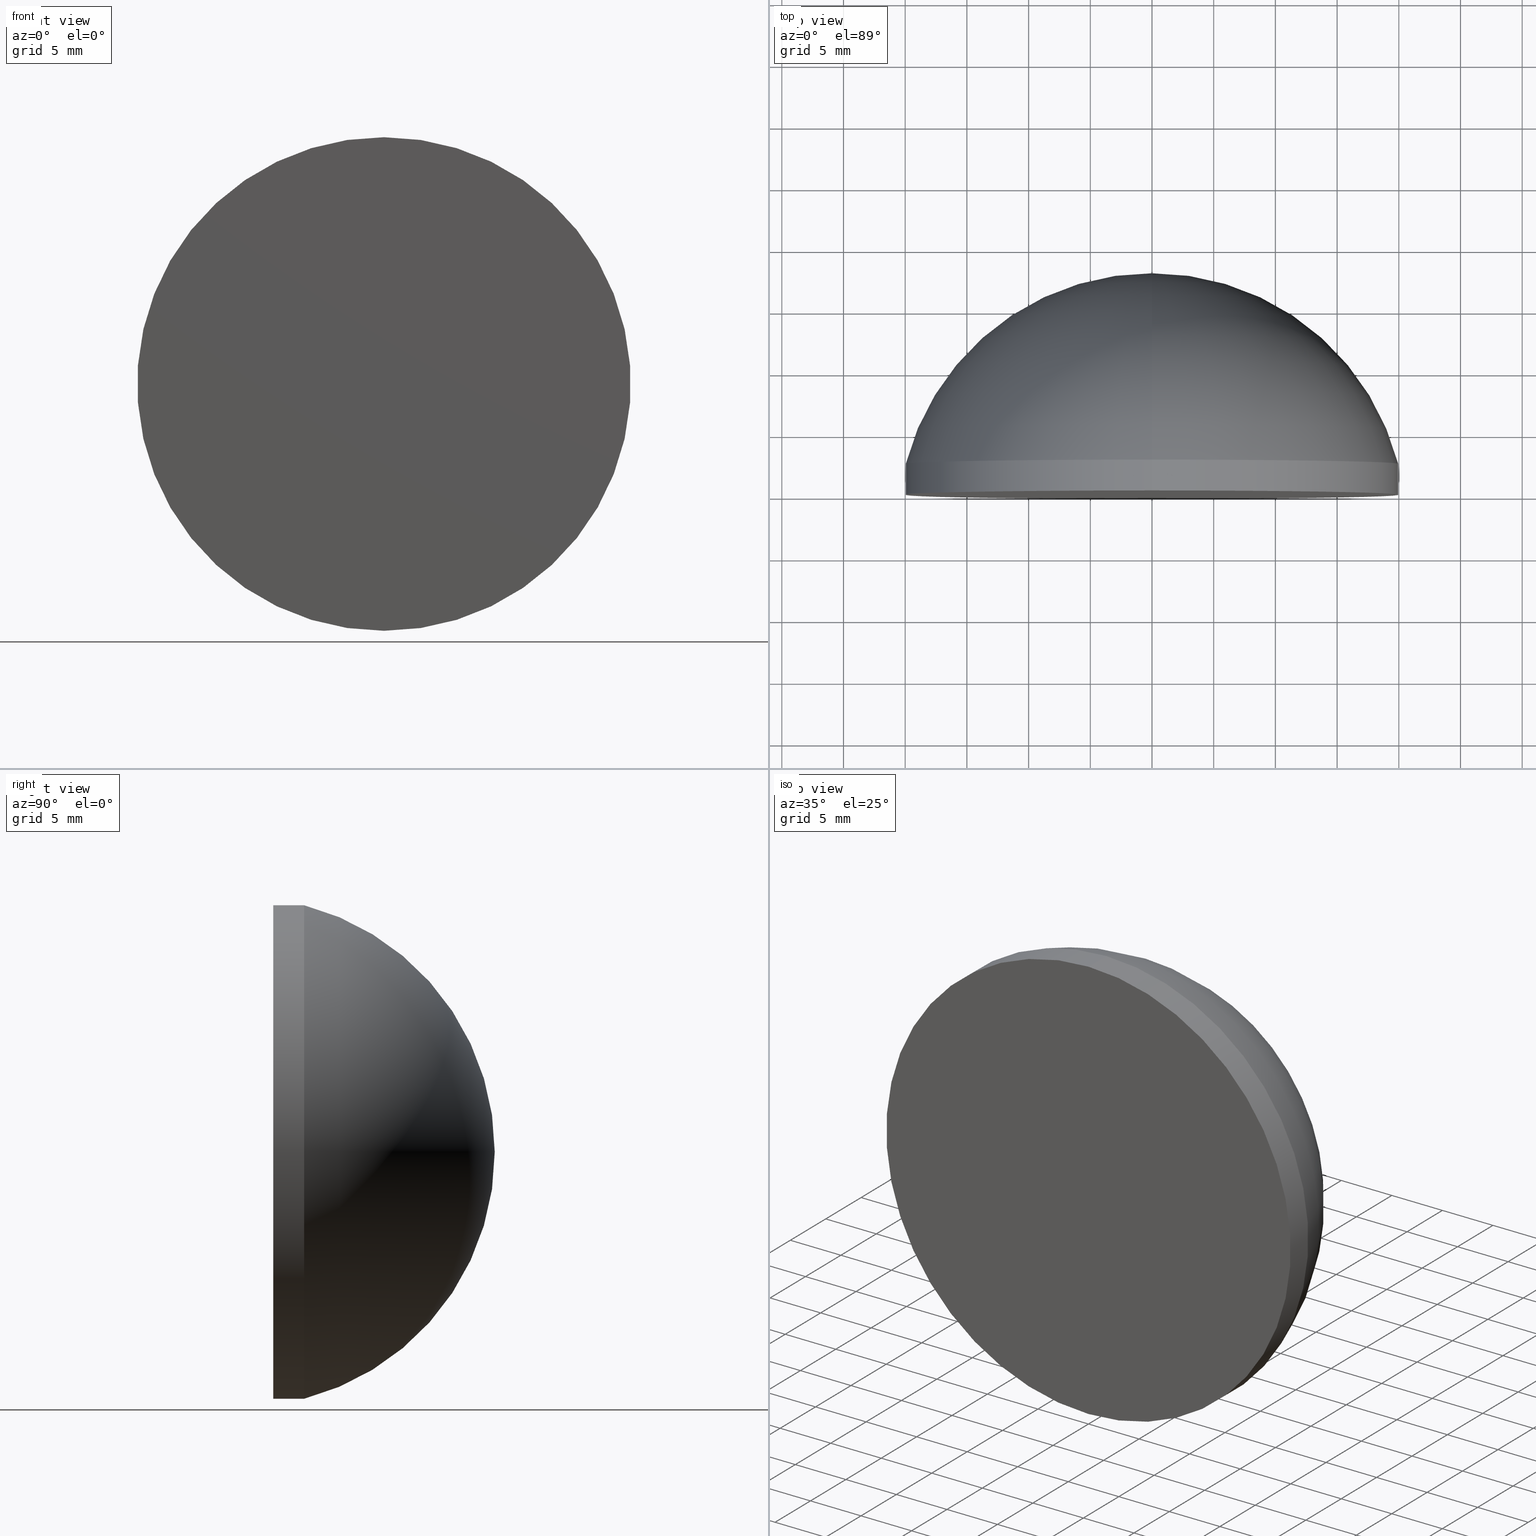
[diagram: canonical four-view strip — front | top / right | iso, engineering-drawing reading convention]
A machine part, canonical four-view strip (front | top / right | iso — engineering-drawing reading convention). The complete STEP part file that produces these views, byte-faithful:
ISO-10303-21;
HEADER;
FILE_DESCRIPTION (( 'STEP AP203' ),
    '1' );
FILE_NAME ('100558.STEP',
    '2024-05-09T01:59:52',
    ( '' ),
    ( '' ),
    'SwSTEP 2.0',
    'SolidWorks 2020',
    '' );
FILE_SCHEMA (( 'CONFIG_CONTROL_DESIGN' ));
ENDSEC;

DATA;
#1 = CALENDAR_DATE ( 2024, 9, 5 ) ;
#2 = PRODUCT_DEFINITION_FORMATION_WITH_SPECIFIED_SOURCE ( '�κ�', '', #63, .NOT_KNOWN. ) ;
#3 = LINE ( 'NONE', #188, #143 ) ;
#4 = CIRCLE ( 'NONE', #167, 20.00000000000000000 ) ;
#5 = ORIENTED_EDGE ( 'NONE', *, *, #109, .F. ) ;
#6 = DIRECTION ( 'NONE',  ( -1.000000000000000000, 0.000000000000000000, 0.000000000000000000 ) ) ;
#7 = EDGE_CURVE ( 'NONE', #145, #161, #54, .T. ) ;
#8 = ORIENTED_EDGE ( 'NONE', *, *, #172, .T. ) ;
#9 = PERSON ( 'δָ��', 'δָ��', 'δָ��', ('δָ��'), ('δָ��'), ('δָ��') ) ;
#10 = VERTEX_POINT ( 'NONE', #40 ) ;
#11 = CIRCLE ( 'NONE', #15, 20.67000000000000881 ) ;
#12 = CC_DESIGN_PERSON_AND_ORGANIZATION_ASSIGNMENT ( #75, #170, ( #106 ) ) ;
#13 = APPLICATION_CONTEXT ( 'configuration controlled 3d designs of mechanical parts and assemblies' ) ;
#14 = CARTESIAN_POINT ( 'NONE',  ( 2.449293598294706513E-15, 2.499999999999996891, -20.00000000000000000 ) ) ;
#15 = AXIS2_PLACEMENT_3D ( 'NONE', #112, #182, #136 ) ;
#16 = CARTESIAN_POINT ( 'NONE',  ( 0.000000000000000000, 2.499999999999996891, 20.00000000000000000 ) ) ;
#17 = MECHANICAL_CONTEXT ( 'NONE', #13, 'mechanical' ) ;
#18 = COORDINATED_UNIVERSAL_TIME_OFFSET ( 8, 0, .AHEAD. ) ;
#19 = CALENDAR_DATE ( 2024, 9, 5 ) ;
#20 = APPROVAL_STATUS ( 'not_yet_approved' ) ;
#21 = AXIS2_PLACEMENT_3D ( 'NONE', #164, #67, #146 ) ;
#22 = PERSON_AND_ORGANIZATION_ROLE ( 'classification_officer' ) ;
#23 = DATE_AND_TIME ( #187, #114 ) ;
#24 = CARTESIAN_POINT ( 'NONE',  ( 0.000000000000000000, -3.469446951953614189E-15, 0.000000000000000000 ) ) ;
#25 = ORIENTED_EDGE ( 'NONE', *, *, #155, .F. ) ;
#26 = LOCAL_TIME ( 9, 59, 52.00000000000000000, #183 ) ;
#27 = ORIENTED_EDGE ( 'NONE', *, *, #128, .T. ) ;
#28 = ADVANCED_FACE ( 'NONE', ( #134 ), #110, .T. ) ;
#29 = CYLINDRICAL_SURFACE ( 'NONE', #53, 20.00000000000000000 ) ;
#30 = CYLINDRICAL_SURFACE ( 'NONE', #41, 20.00000000000000000 ) ;
#31 = DATE_AND_TIME ( #165, #26 ) ;
#32 = DIRECTION ( 'NONE',  ( -0.000000000000000000, 1.000000000000000000, -0.000000000000000000 ) ) ;
#33 = APPROVAL_STATUS ( 'not_yet_approved' ) ;
#34 = AXIS2_PLACEMENT_3D ( 'NONE', #199, #91, #150 ) ;
#35 = PERSON_AND_ORGANIZATION ( #9, #152 ) ;
#36 = CARTESIAN_POINT ( 'NONE',  ( 0.000000000000000000, -3.469446951953614189E-15, 20.00000000000000000 ) ) ;
#37 = ORIENTED_EDGE ( 'NONE', *, *, #46, .T. ) ;
#38 = PRODUCT_RELATED_PRODUCT_CATEGORY ( 'detail', '', ( #63 ) ) ;
#39 = DIRECTION ( 'NONE',  ( 0.000000000000000000, -1.000000000000000000, 0.000000000000000000 ) ) ;
#40 = CARTESIAN_POINT ( 'NONE',  ( 2.449293598294706513E-15, -3.469446951953614189E-15, -20.00000000000000000 ) ) ;
#41 = AXIS2_PLACEMENT_3D ( 'NONE', #111, #137, #72 ) ;
#42 = CARTESIAN_POINT ( 'NONE',  ( 0.000000000000000000, 17.94999999999999929, 0.000000000000000000 ) ) ;
#43 = PERSON_AND_ORGANIZATION ( #9, #152 ) ;
#44 = FACE_OUTER_BOUND ( 'NONE', #159, .T. ) ;
#45 = CIRCLE ( 'NONE', #156, 20.00000000000000000 ) ;
#46 = EDGE_CURVE ( 'NONE', #175, #145, #45, .T. ) ;
#47 = DIRECTION ( 'NONE',  ( -0.000000000000000000, 1.000000000000000000, -0.000000000000000000 ) ) ;
#48 = PERSON_AND_ORGANIZATION_ROLE ( 'creator' ) ;
#49 = CC_DESIGN_APPROVAL ( #133, ( #106 ) ) ;
#50 = CIRCLE ( 'NONE', #124, 20.00000000000000000 ) ;
#51 = CARTESIAN_POINT ( 'NONE',  ( 0.000000000000000000, 2.499999999999996891, 0.000000000000000000 ) ) ;
#52 = EDGE_LOOP ( 'NONE', ( #85, #129 ) ) ;
#53 = AXIS2_PLACEMENT_3D ( 'NONE', #190, #86, #88 ) ;
#54 = CIRCLE ( 'NONE', #81, 20.67000000000000881 ) ;
#55 = ADVANCED_FACE ( 'NONE', ( #116 ), #29, .T. ) ;
#56 = APPROVAL ( #20, 'δָ��' ) ;
#57 = DIRECTION ( 'NONE',  ( 0.000000000000000000, 0.000000000000000000, 1.000000000000000000 ) ) ;
#58 = APPROVAL_DATE_TIME ( #200, #139 ) ;
#59 = VECTOR ( 'NONE', #118, 1000.000000000000000 ) ;
#60 = EDGE_CURVE ( 'NONE', #104, #145, #149, .T. ) ;
#61 = APPROVAL_PERSON_ORGANIZATION ( #201, #139, #113 ) ;
#62 = PERSON_AND_ORGANIZATION_ROLE ( 'design_supplier' ) ;
#63 = PRODUCT ( '100558', '100558', '', ( #17 ) ) ;
#64 = DIRECTION ( 'NONE',  ( 0.000000000000000000, 0.000000000000000000, 1.000000000000000000 ) ) ;
#65 = CARTESIAN_POINT ( 'NONE',  ( 0.000000000000000000, 17.94999999999999929, 20.00000000000000000 ) ) ;
#66 = EDGE_LOOP ( 'NONE', ( #191, #8, #193 ) ) ;
#67 = DIRECTION ( 'NONE',  ( -0.000000000000000000, 1.000000000000000000, -0.000000000000000000 ) ) ;
#68 = ADVANCED_FACE ( 'NONE', ( #194 ), #92, .T. ) ;
#69 = EDGE_LOOP ( 'NONE', ( #130, #37, #179 ) ) ;
#70 = MANIFOLD_SOLID_BREP ( '��ת1', #168 ) ;
#71 = UNCERTAINTY_MEASURE_WITH_UNIT (LENGTH_MEASURE( 1.000000000000000082E-05 ), #73, 'distance_accuracy_value', 'NONE');
#72 = DIRECTION ( 'NONE',  ( 0.000000000000000000, 0.000000000000000000, 1.000000000000000000 ) ) ;
#73 =( LENGTH_UNIT ( ) NAMED_UNIT ( * ) SI_UNIT ( .MILLI., .METRE. ) );
#74 = COORDINATED_UNIVERSAL_TIME_OFFSET ( 8, 0, .AHEAD. ) ;
#75 = PERSON_AND_ORGANIZATION ( #9, #152 ) ;
#76 = DATE_AND_TIME ( #19, #177 ) ;
#77 = COORDINATED_UNIVERSAL_TIME_OFFSET ( 8, 0, .AHEAD. ) ;
#78 = APPLICATION_CONTEXT ( 'configuration controlled 3d designs of mechanical parts and assemblies' ) ;
#79 = CC_DESIGN_PERSON_AND_ORGANIZATION_ASSIGNMENT ( #126, #62, ( #2 ) ) ;
#80 = DATE_TIME_ROLE ( 'classification_date' ) ;
#81 = AXIS2_PLACEMENT_3D ( 'NONE', #148, #6, #120 ) ;
#82 = DIRECTION ( 'NONE',  ( -0.000000000000000000, 1.000000000000000000, -0.000000000000000000 ) ) ;
#83 = ORIENTED_EDGE ( 'NONE', *, *, #60, .T. ) ;
#84 = LOCAL_TIME ( 9, 59, 52.00000000000000000, #74 ) ;
#85 = ORIENTED_EDGE ( 'NONE', *, *, #192, .F. ) ;
#86 = DIRECTION ( 'NONE',  ( -0.000000000000000000, 1.000000000000000000, -0.000000000000000000 ) ) ;
#87 = ORIENTED_EDGE ( 'NONE', *, *, #192, .T. ) ;
#88 = DIRECTION ( 'NONE',  ( 0.000000000000000000, 0.000000000000000000, 1.000000000000000000 ) ) ;
#89 = ADVANCED_BREP_SHAPE_REPRESENTATION ( '100558', ( #70, #34 ), #107 ) ;
#90 = CARTESIAN_POINT ( 'NONE',  ( 0.000000000000000000, 2.499999999999996891, 0.000000000000000000 ) ) ;
#91 = DIRECTION ( 'NONE',  ( 0.000000000000000000, 0.000000000000000000, 1.000000000000000000 ) ) ;
#92 = TOROIDAL_SURFACE ( 'NONE', #198, -1.249999708602400617E-05, 20.67000000000000881 ) ;
#93 = APPROVAL_PERSON_ORGANIZATION ( #157, #56, #98 ) ;
#94 = DIRECTION ( 'NONE',  ( 0.000000000000000000, 0.000000000000000000, 1.000000000000000000 ) ) ;
#95 = CC_DESIGN_APPROVAL ( #139, ( #2 ) ) ;
#96 = CC_DESIGN_DATE_AND_TIME_ASSIGNMENT ( #76, #80, ( #160 ) ) ;
#97 = PRODUCT_DEFINITION_SHAPE ( 'NONE', 'NONE',  #106 ) ;
#98 = APPROVAL_ROLE ( '' ) ;
#99 = CARTESIAN_POINT ( 'NONE',  ( 0.000000000000000000, -2.719999999996225437, 0.000000000000000000 ) ) ;
#100 = AXIS2_PLACEMENT_3D ( 'NONE', #121, #32, #94 ) ;
#101 = EDGE_LOOP ( 'NONE', ( #5, #27, #83, #117 ) ) ;
#102 = ADVANCED_FACE ( 'NONE', ( #147 ), #158, .T. ) ;
#103 = CC_DESIGN_SECURITY_CLASSIFICATION ( #160, ( #2 ) ) ;
#104 = VERTEX_POINT ( 'NONE', #36 ) ;
#105 = DIRECTION ( 'NONE',  ( 0.000000000000000000, -0.000000000000000000, -1.000000000000000000 ) ) ;
#106 = PRODUCT_DEFINITION ( 'δ֪', '', #2, #180 ) ;
#107 =( GEOMETRIC_REPRESENTATION_CONTEXT ( 3 ) GLOBAL_UNCERTAINTY_ASSIGNED_CONTEXT ( ( #71 ) ) GLOBAL_UNIT_ASSIGNED_CONTEXT ( ( #73, #153, #138 ) ) REPRESENTATION_CONTEXT ( 'NONE', 'WORKASPACE' ) );
#108 = APPROVAL_ROLE ( '' ) ;
#109 = EDGE_CURVE ( 'NONE', #10, #175, #3, .T. ) ;
#110 = TOROIDAL_SURFACE ( 'NONE', #21, -1.249999708602400617E-05, 20.67000000000000881 ) ;
#111 = CARTESIAN_POINT ( 'NONE',  ( 0.000000000000000000, 17.94999999999999929, 0.000000000000000000 ) ) ;
#112 = CARTESIAN_POINT ( 'NONE',  ( -1.530808142075054168E-21, -2.719999999996225437, 1.249999708602400617E-05 ) ) ;
#113 = APPROVAL_ROLE ( '' ) ;
#114 = LOCAL_TIME ( 9, 59, 52.00000000000000000, #77 ) ;
#115 = SHAPE_DEFINITION_REPRESENTATION ( #97, #89 ) ;
#116 = FACE_OUTER_BOUND ( 'NONE', #101, .T. ) ;
#117 = ORIENTED_EDGE ( 'NONE', *, *, #46, .F. ) ;
#118 = DIRECTION ( 'NONE',  ( -0.000000000000000000, 1.000000000000000000, -0.000000000000000000 ) ) ;
#119 = DIRECTION ( 'NONE',  ( -0.000000000000000000, 1.000000000000000000, -0.000000000000000000 ) ) ;
#120 = DIRECTION ( 'NONE',  ( 0.000000000000000000, 0.000000000000000000, 1.000000000000000000 ) ) ;
#121 = CARTESIAN_POINT ( 'NONE',  ( 0.000000000000000000, -3.469446951953614189E-15, 0.000000000000000000 ) ) ;
#122 = PERSON_AND_ORGANIZATION ( #9, #152 ) ;
#123 = PERSON_AND_ORGANIZATION_ROLE ( 'design_owner' ) ;
#124 = AXIS2_PLACEMENT_3D ( 'NONE', #90, #47, #57 ) ;
#125 = COORDINATED_UNIVERSAL_TIME_OFFSET ( 8, 0, .AHEAD. ) ;
#126 = PERSON_AND_ORGANIZATION ( #9, #152 ) ;
#127 = AXIS2_PLACEMENT_3D ( 'NONE', #144, #39, #105 ) ;
#128 = EDGE_CURVE ( 'NONE', #10, #104, #4, .T. ) ;
#129 = ORIENTED_EDGE ( 'NONE', *, *, #128, .F. ) ;
#130 = ORIENTED_EDGE ( 'NONE', *, *, #172, .F. ) ;
#131 = CC_DESIGN_PERSON_AND_ORGANIZATION_ASSIGNMENT ( #35, #22, ( #160 ) ) ;
#132 = ORIENTED_EDGE ( 'NONE', *, *, #60, .F. ) ;
#133 = APPROVAL ( #197, 'δָ��' ) ;
#134 = FACE_OUTER_BOUND ( 'NONE', #69, .T. ) ;
#135 = APPLICATION_PROTOCOL_DEFINITION ( 'international standard', 'config_control_design', 1994, #13 ) ;
#136 = DIRECTION ( 'NONE',  ( 1.224646799147353207E-16, 0.000000000000000000, -1.000000000000000000 ) ) ;
#137 = DIRECTION ( 'NONE',  ( -0.000000000000000000, 1.000000000000000000, -0.000000000000000000 ) ) ;
#138 =( NAMED_UNIT ( * ) SI_UNIT ( $, .STERADIAN. ) SOLID_ANGLE_UNIT ( ) );
#139 = APPROVAL ( #33, 'δָ��' ) ;
#140 = CALENDAR_DATE ( 2024, 9, 5 ) ;
#141 = APPROVAL_DATE_TIME ( #23, #56 ) ;
#142 = DATE_TIME_ROLE ( 'creation_date' ) ;
#143 = VECTOR ( 'NONE', #174, 1000.000000000000000 ) ;
#144 = CARTESIAN_POINT ( 'NONE',  ( 0.000000000000000000, -1.224646799147353256E-15, 0.000000000000000000 ) ) ;
#145 = VERTEX_POINT ( 'NONE', #16 ) ;
#146 = DIRECTION ( 'NONE',  ( 0.000000000000000000, 0.000000000000000000, 1.000000000000000000 ) ) ;
#147 = FACE_OUTER_BOUND ( 'NONE', #52, .T. ) ;
#148 = CARTESIAN_POINT ( 'NONE',  ( 0.000000000000000000, -2.719999999996225437, -1.249999708602400617E-05 ) ) ;
#149 = LINE ( 'NONE', #65, #59 ) ;
#150 = DIRECTION ( 'NONE',  ( 1.000000000000000000, 0.000000000000000000, 0.000000000000000000 ) ) ;
#151 = APPROVAL_DATE_TIME ( #31, #133 ) ;
#152 = ORGANIZATION ( 'δָ��', 'δָ��', '' ) ;
#153 =( NAMED_UNIT ( * ) PLANE_ANGLE_UNIT ( ) SI_UNIT ( $, .RADIAN. ) );
#154 = SECURITY_CLASSIFICATION_LEVEL ( 'unclassified' ) ;
#155 = EDGE_CURVE ( 'NONE', #145, #175, #50, .T. ) ;
#156 = AXIS2_PLACEMENT_3D ( 'NONE', #51, #162, #64 ) ;
#157 = PERSON_AND_ORGANIZATION ( #9, #152 ) ;
#158 = PLANE ( 'NONE',  #127 ) ;
#159 = EDGE_LOOP ( 'NONE', ( #87, #189, #25, #132 ) ) ;
#160 = SECURITY_CLASSIFICATION ( '', '', #154 ) ;
#161 = VERTEX_POINT ( 'NONE', #42 ) ;
#162 = DIRECTION ( 'NONE',  ( -0.000000000000000000, 1.000000000000000000, -0.000000000000000000 ) ) ;
#163 = CIRCLE ( 'NONE', #100, 20.00000000000000000 ) ;
#164 = CARTESIAN_POINT ( 'NONE',  ( 0.000000000000000000, -2.719999999996225437, 0.000000000000000000 ) ) ;
#165 = CALENDAR_DATE ( 2024, 9, 5 ) ;
#166 = CC_DESIGN_PERSON_AND_ORGANIZATION_ASSIGNMENT ( #184, #48, ( #2 ) ) ;
#167 = AXIS2_PLACEMENT_3D ( 'NONE', #24, #82, #195 ) ;
#168 = CLOSED_SHELL ( 'NONE', ( #176, #68, #28, #102, #55 ) ) ;
#169 = DATE_AND_TIME ( #1, #84 ) ;
#170 = PERSON_AND_ORGANIZATION_ROLE ( 'creator' ) ;
#171 = APPROVAL_PERSON_ORGANIZATION ( #43, #133, #108 ) ;
#172 = EDGE_CURVE ( 'NONE', #175, #161, #11, .T. ) ;
#173 = CC_DESIGN_DATE_AND_TIME_ASSIGNMENT ( #169, #142, ( #106 ) ) ;
#174 = DIRECTION ( 'NONE',  ( -0.000000000000000000, 1.000000000000000000, -0.000000000000000000 ) ) ;
#175 = VERTEX_POINT ( 'NONE', #14 ) ;
#176 = ADVANCED_FACE ( 'NONE', ( #44 ), #30, .T. ) ;
#177 = LOCAL_TIME ( 9, 59, 52.00000000000000000, #125 ) ;
#178 = DIRECTION ( 'NONE',  ( 0.000000000000000000, 0.000000000000000000, 1.000000000000000000 ) ) ;
#179 = ORIENTED_EDGE ( 'NONE', *, *, #7, .T. ) ;
#180 = DESIGN_CONTEXT ( 'detailed design', #78, 'design' ) ;
#181 = APPLICATION_PROTOCOL_DEFINITION ( 'international standard', 'config_control_design', 1994, #78 ) ;
#182 = DIRECTION ( 'NONE',  ( 1.000000000000000000, 0.000000000000000000, 1.224646799147353207E-16 ) ) ;
#183 = COORDINATED_UNIVERSAL_TIME_OFFSET ( 8, 0, .AHEAD. ) ;
#184 = PERSON_AND_ORGANIZATION ( #9, #152 ) ;
#185 = CC_DESIGN_APPROVAL ( #56, ( #160 ) ) ;
#186 = CC_DESIGN_PERSON_AND_ORGANIZATION_ASSIGNMENT ( #122, #123, ( #63 ) ) ;
#187 = CALENDAR_DATE ( 2024, 9, 5 ) ;
#188 = CARTESIAN_POINT ( 'NONE',  ( 2.449293598294706513E-15, 17.94999999999999929, -20.00000000000000000 ) ) ;
#189 = ORIENTED_EDGE ( 'NONE', *, *, #109, .T. ) ;
#190 = CARTESIAN_POINT ( 'NONE',  ( 0.000000000000000000, 17.94999999999999929, 0.000000000000000000 ) ) ;
#191 = ORIENTED_EDGE ( 'NONE', *, *, #155, .T. ) ;
#192 = EDGE_CURVE ( 'NONE', #104, #10, #163, .T. ) ;
#193 = ORIENTED_EDGE ( 'NONE', *, *, #7, .F. ) ;
#194 = FACE_OUTER_BOUND ( 'NONE', #66, .T. ) ;
#195 = DIRECTION ( 'NONE',  ( 0.000000000000000000, 0.000000000000000000, 1.000000000000000000 ) ) ;
#196 = LOCAL_TIME ( 9, 59, 52.00000000000000000, #18 ) ;
#197 = APPROVAL_STATUS ( 'not_yet_approved' ) ;
#198 = AXIS2_PLACEMENT_3D ( 'NONE', #99, #119, #178 ) ;
#199 = CARTESIAN_POINT ( 'NONE',  ( 0.000000000000000000, 0.000000000000000000, 0.000000000000000000 ) ) ;
#200 = DATE_AND_TIME ( #140, #196 ) ;
#201 = PERSON_AND_ORGANIZATION ( #9, #152 ) ;
ENDSEC;
END-ISO-10303-21;
